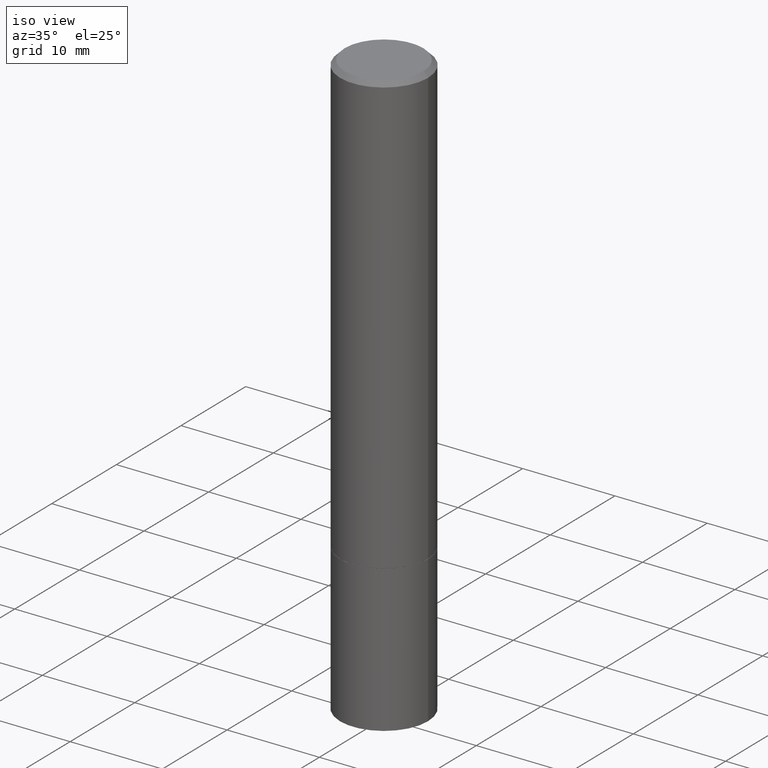
[diagram: clean part render]
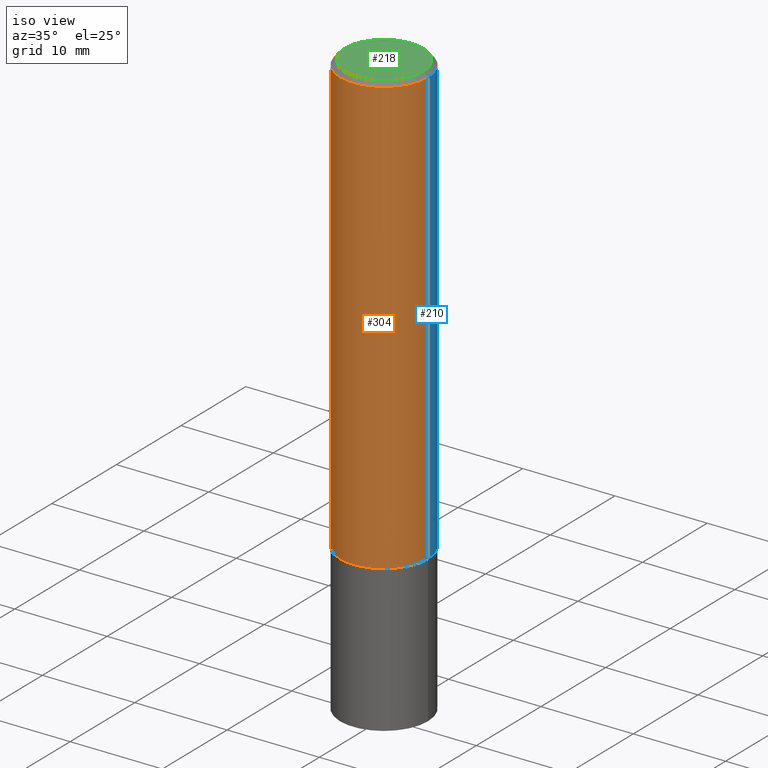
[diagram: same view with three faces highlighted in distinct colors, each labeled with its STEP entity id]
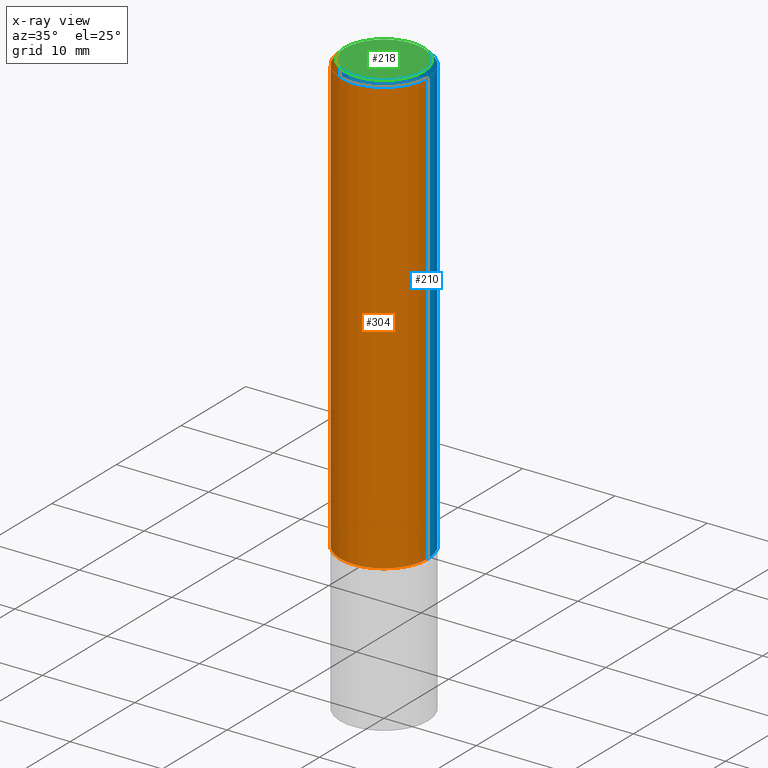
[diagram: x-ray of the same camera — body ghosted, the three highlighted faces saturated]
A machine part, iso view with three faces highlighted in distinct colors.
The next image is the same camera in x-ray (body ghosted, the three faces saturated) — at least one of them is partly hidden behind the body in this view.
Their STEP definitions:

[orange] entity #304 — the highlighted cylindrical surface (partial cylindrical patch) has radius 4.7625 mm, axis along (-0, 0, 1).
#1 = DIRECTION ( 'NONE',  ( -2.445468806185136597E-29, 3.491481338843145583E-15, 1.000000000000000000 ) ) ;
#3 = EDGE_CURVE ( 'NONE', #307, #189, #246, .T. ) ;
#9 = DIRECTION ( 'NONE',  ( -2.445468806185136877E-29, 3.491481338843145188E-15, 1.000000000000000000 ) ) ;
#10 = AXIS2_PLACEMENT_3D ( 'NONE', #115, #242, #330 ) ;
#22 = DIRECTION ( 'NONE',  ( 1.000000000000000000, -6.982962677686265922E-15, 4.876176775795935793E-29 ) ) ;
#31 = AXIS2_PLACEMENT_3D ( 'NONE', #188, #1, #113 ) ;
#51 = CARTESIAN_POINT ( 'NONE',  ( 0.000000000000000000, 0.000000000000000000, 0.000000000000000000 ) ) ;
#62 = EDGE_CURVE ( 'NONE', #307, #171, #388, .T. ) ;
#80 = CARTESIAN_POINT ( 'NONE',  ( 0.1874999999999999167, -1.309305502066174219E-15, 9.142831454617375408E-30 ) ) ;
#85 = VECTOR ( 'NONE', #348, 39.37007874015748143 ) ;
#107 = LINE ( 'NONE', #80, #85 ) ;
#113 = DIRECTION ( 'NONE',  ( 1.000000000000000000, -6.982962677686265922E-15, 0.000000000000000000 ) ) ;
#115 = CARTESIAN_POINT ( 'NONE',  ( 4.890937612370283668E-31, -6.982962677686305168E-17, -0.02000000000000004205 ) ) ;
#122 = VERTEX_POINT ( 'NONE', #149 ) ;
#140 = AXIS2_PLACEMENT_3D ( 'NONE', #51, #230, #22 ) ;
#149 = CARTESIAN_POINT ( 'NONE',  ( 0.1874999999999997780, -1.356173001359023691E-15, -0.02000000000000004205 ) ) ;
#154 = ORIENTED_EDGE ( 'NONE', *, *, #256, .T. ) ;
#164 = EDGE_CURVE ( 'NONE', #189, #122, #185, .T. ) ;
#171 = VERTEX_POINT ( 'NONE', #359 ) ;
#185 = CIRCLE ( 'NONE', #10, 0.1874999999999997780 ) ;
#188 = CARTESIAN_POINT ( 'NONE',  ( 4.582808542790945516E-29, -6.543036028992054911E-15, -1.874000000000000110 ) ) ;
#189 = VERTEX_POINT ( 'NONE', #200 ) ;
#195 = ORIENTED_EDGE ( 'NONE', *, *, #3, .F. ) ;
#200 = CARTESIAN_POINT ( 'NONE',  ( -0.1874999999999997780, 1.239475875289310330E-15, -0.02000000000000004205 ) ) ;
#201 = EDGE_LOOP ( 'NONE', ( #195, #319, #154, #247 ) ) ;
#208 = VECTOR ( 'NONE', #9, 39.37007874015748143 ) ;
#230 = DIRECTION ( 'NONE',  ( -2.445468806185136597E-29, 3.491481338843145583E-15, 1.000000000000000000 ) ) ;
#242 = DIRECTION ( 'NONE',  ( -2.445468806185136597E-29, 3.491481338843145583E-15, 1.000000000000000000 ) ) ;
#246 = LINE ( 'NONE', #309, #208 ) ;
#247 = ORIENTED_EDGE ( 'NONE', *, *, #164, .F. ) ;
#256 = EDGE_CURVE ( 'NONE', #171, #122, #107, .T. ) ;
#265 = CARTESIAN_POINT ( 'NONE',  ( -0.1875000000000000555, -1.974165198334268889E-15, -1.874000000000000110 ) ) ;
#296 = CYLINDRICAL_SURFACE ( 'NONE', #140, 0.1874999999999999167 ) ;
#304 = ADVANCED_FACE ( 'NONE', ( #323 ), #296, .T. ) ;
#307 = VERTEX_POINT ( 'NONE', #265 ) ;
#309 = CARTESIAN_POINT ( 'NONE',  ( -0.1874999999999999167, 1.332267629550187257E-15, -9.223003294227943787E-30 ) ) ;
#319 = ORIENTED_EDGE ( 'NONE', *, *, #62, .T. ) ;
#323 = FACE_OUTER_BOUND ( 'NONE', #201, .T. ) ;
#330 = DIRECTION ( 'NONE',  ( 1.000000000000000000, -6.982962677686265133E-15, 0.000000000000000000 ) ) ;
#348 = DIRECTION ( 'NONE',  ( -2.445468806185136877E-29, 3.491481338843145188E-15, 1.000000000000000000 ) ) ;
#359 = CARTESIAN_POINT ( 'NONE',  ( 0.1875000000000000555, -7.852341531058230708E-15, -1.874000000000000110 ) ) ;
#388 = CIRCLE ( 'NONE', #31, 0.1875000000000000555 ) ;

[blue] entity #210 — the highlighted cylindrical surface (partial cylindrical patch) has radius 4.7625 mm, axis along (-0, 0, 1).
#3 = EDGE_CURVE ( 'NONE', #307, #189, #246, .T. ) ;
#9 = DIRECTION ( 'NONE',  ( -2.445468806185136877E-29, 3.491481338843145188E-15, 1.000000000000000000 ) ) ;
#13 = DIRECTION ( 'NONE',  ( 1.000000000000000000, -6.982962677686265133E-15, 0.000000000000000000 ) ) ;
#16 = CARTESIAN_POINT ( 'NONE',  ( 0.000000000000000000, 0.000000000000000000, 0.000000000000000000 ) ) ;
#40 = DIRECTION ( 'NONE',  ( -2.445468806185136597E-29, 3.491481338843145583E-15, 1.000000000000000000 ) ) ;
#65 = ORIENTED_EDGE ( 'NONE', *, *, #256, .F. ) ;
#80 = CARTESIAN_POINT ( 'NONE',  ( 0.1874999999999999167, -1.309305502066174219E-15, 9.142831454617375408E-30 ) ) ;
#85 = VECTOR ( 'NONE', #348, 39.37007874015748143 ) ;
#104 = CIRCLE ( 'NONE', #360, 0.1875000000000000555 ) ;
#107 = LINE ( 'NONE', #80, #85 ) ;
#109 = DIRECTION ( 'NONE',  ( -2.445468806185136597E-29, 3.491481338843145583E-15, 1.000000000000000000 ) ) ;
#122 = VERTEX_POINT ( 'NONE', #149 ) ;
#137 = AXIS2_PLACEMENT_3D ( 'NONE', #197, #40, #13 ) ;
#145 = DIRECTION ( 'NONE',  ( 1.000000000000000000, -6.982962677686265922E-15, 4.876176775795935793E-29 ) ) ;
#149 = CARTESIAN_POINT ( 'NONE',  ( 0.1874999999999997780, -1.356173001359023691E-15, -0.02000000000000004205 ) ) ;
#171 = VERTEX_POINT ( 'NONE', #359 ) ;
#172 = CARTESIAN_POINT ( 'NONE',  ( 4.582808542790945516E-29, -6.543036028992054911E-15, -1.874000000000000110 ) ) ;
#175 = CYLINDRICAL_SURFACE ( 'NONE', #300, 0.1874999999999999167 ) ;
#189 = VERTEX_POINT ( 'NONE', #200 ) ;
#197 = CARTESIAN_POINT ( 'NONE',  ( 4.890937612370283668E-31, -6.982962677686305168E-17, -0.02000000000000004205 ) ) ;
#198 = DIRECTION ( 'NONE',  ( -2.445468806185136597E-29, 3.491481338843145583E-15, 1.000000000000000000 ) ) ;
#200 = CARTESIAN_POINT ( 'NONE',  ( -0.1874999999999997780, 1.239475875289310330E-15, -0.02000000000000004205 ) ) ;
#202 = CIRCLE ( 'NONE', #137, 0.1874999999999997780 ) ;
#208 = VECTOR ( 'NONE', #9, 39.37007874015748143 ) ;
#210 = ADVANCED_FACE ( 'NONE', ( #386 ), #175, .T. ) ;
#246 = LINE ( 'NONE', #309, #208 ) ;
#256 = EDGE_CURVE ( 'NONE', #171, #122, #107, .T. ) ;
#265 = CARTESIAN_POINT ( 'NONE',  ( -0.1875000000000000555, -1.974165198334268889E-15, -1.874000000000000110 ) ) ;
#300 = AXIS2_PLACEMENT_3D ( 'NONE', #16, #109, #145 ) ;
#307 = VERTEX_POINT ( 'NONE', #265 ) ;
#308 = EDGE_LOOP ( 'NONE', ( #384, #351, #364, #65 ) ) ;
#309 = CARTESIAN_POINT ( 'NONE',  ( -0.1874999999999999167, 1.332267629550187257E-15, -9.223003294227943787E-30 ) ) ;
#318 = DIRECTION ( 'NONE',  ( 1.000000000000000000, -6.982962677686265922E-15, 0.000000000000000000 ) ) ;
#325 = EDGE_CURVE ( 'NONE', #171, #307, #104, .T. ) ;
#348 = DIRECTION ( 'NONE',  ( -2.445468806185136877E-29, 3.491481338843145188E-15, 1.000000000000000000 ) ) ;
#351 = ORIENTED_EDGE ( 'NONE', *, *, #3, .T. ) ;
#359 = CARTESIAN_POINT ( 'NONE',  ( 0.1875000000000000555, -7.852341531058230708E-15, -1.874000000000000110 ) ) ;
#360 = AXIS2_PLACEMENT_3D ( 'NONE', #172, #198, #318 ) ;
#364 = ORIENTED_EDGE ( 'NONE', *, *, #371, .F. ) ;
#371 = EDGE_CURVE ( 'NONE', #122, #189, #202, .T. ) ;
#384 = ORIENTED_EDGE ( 'NONE', *, *, #325, .T. ) ;
#386 = FACE_OUTER_BOUND ( 'NONE', #308, .T. ) ;

[green] entity #218 — the highlighted planar face has unit normal (0, -0, -1).
#46 = CARTESIAN_POINT ( 'NONE',  ( 0.000000000000000000, 0.000000000000000000, 0.000000000000000000 ) ) ;
#47 = DIRECTION ( 'NONE',  ( 1.000000000000000000, -6.982962677686266711E-15, 4.876176775795935793E-29 ) ) ;
#110 = CIRCLE ( 'NONE', #163, 0.1674999999999997879 ) ;
#134 = EDGE_CURVE ( 'NONE', #139, #222, #110, .T. ) ;
#139 = VERTEX_POINT ( 'NONE', #326 ) ;
#141 = DIRECTION ( 'NONE',  ( -1.000000000000000000, 6.982962677686265922E-15, -4.876176775795935793E-29 ) ) ;
#163 = AXIS2_PLACEMENT_3D ( 'NONE', #241, #390, #305 ) ;
#191 = EDGE_LOOP ( 'NONE', ( #366, #209 ) ) ;
#194 = AXIS2_PLACEMENT_3D ( 'NONE', #46, #292, #47 ) ;
#203 = FACE_OUTER_BOUND ( 'NONE', #191, .T. ) ;
#209 = ORIENTED_EDGE ( 'NONE', *, *, #134, .T. ) ;
#214 = CIRCLE ( 'NONE', #194, 0.1674999999999997879 ) ;
#218 = ADVANCED_FACE ( 'NONE', ( #203 ), #259, .F. ) ;
#222 = VERTEX_POINT ( 'NONE', #376 ) ;
#233 = CARTESIAN_POINT ( 'NONE',  ( 1.169646248512448215E-15, 0.1674999999999997879, -5.848231242562260795E-16 ) ) ;
#241 = CARTESIAN_POINT ( 'NONE',  ( 0.000000000000000000, 0.000000000000000000, 0.000000000000000000 ) ) ;
#259 = PLANE ( 'NONE',  #329 ) ;
#292 = DIRECTION ( 'NONE',  ( -2.445468806185136597E-29, 3.491481338843145583E-15, 1.000000000000000000 ) ) ;
#305 = DIRECTION ( 'NONE',  ( 1.000000000000000000, -6.982962677686266711E-15, 4.876176775795935793E-29 ) ) ;
#326 = CARTESIAN_POINT ( 'NONE',  ( 0.1674999999999997879, -1.252653207992876908E-15, 8.469775550109228175E-30 ) ) ;
#329 = AXIS2_PLACEMENT_3D ( 'NONE', #233, #353, #141 ) ;
#338 = EDGE_CURVE ( 'NONE', #222, #139, #214, .T. ) ;
#353 = DIRECTION ( 'NONE',  ( 2.438088387897960049E-29, -3.491481338843145188E-15, -1.000000000000000000 ) ) ;
#366 = ORIENTED_EDGE ( 'NONE', *, *, #338, .T. ) ;
#376 = CARTESIAN_POINT ( 'NONE',  ( -0.1674999999999997879, 1.204561061900879272E-15, -8.301862719484101980E-30 ) ) ;
#390 = DIRECTION ( 'NONE',  ( -2.445468806185136597E-29, 3.491481338843145583E-15, 1.000000000000000000 ) ) ;